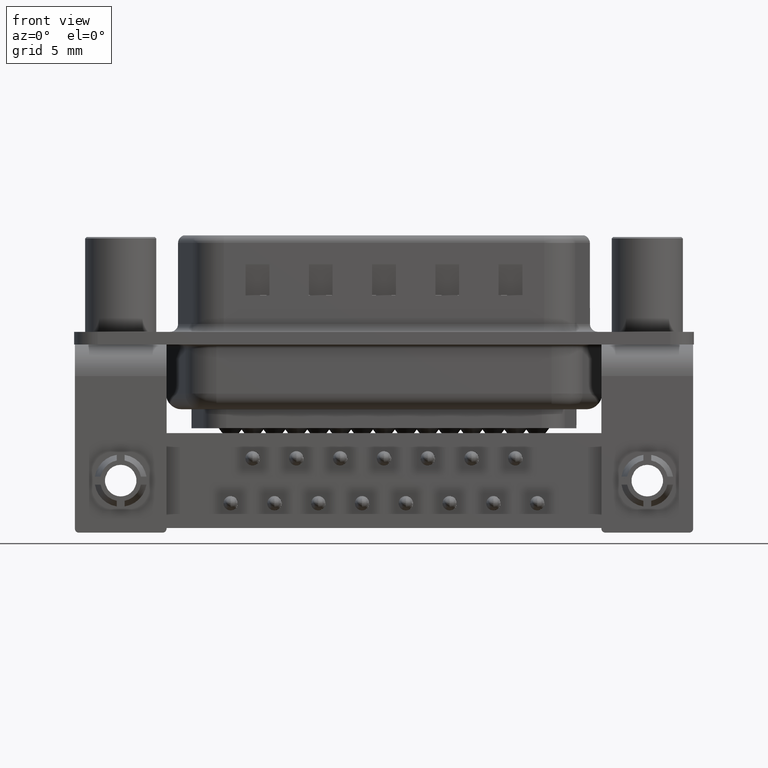
[diagram: clean part render]
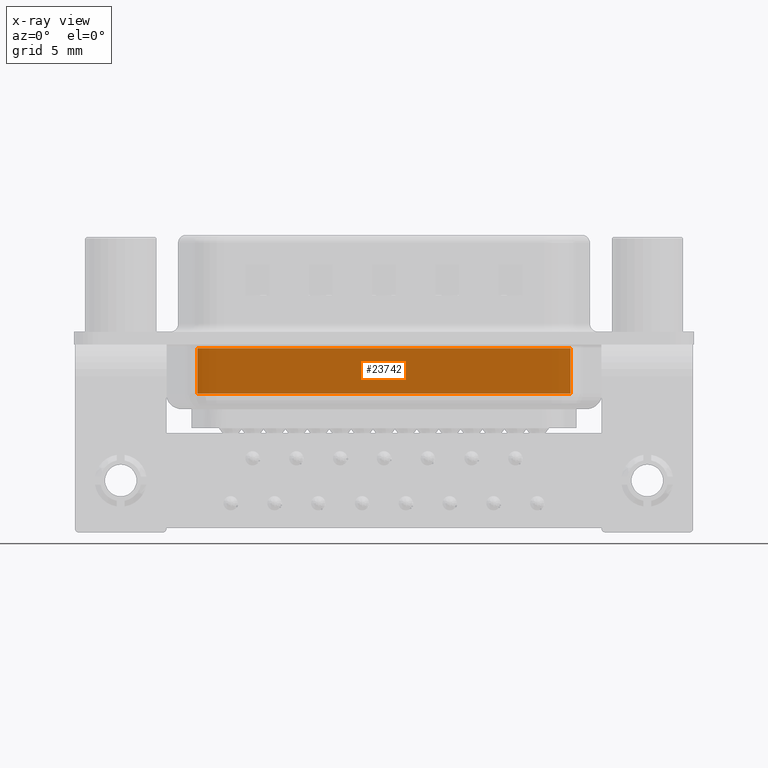
[diagram: x-ray — body ghosted, one internal face saturated and labeled with its STEP entity id]
A machine part, front view, then the same camera in x-ray: the body is ghosted and one INTERNAL B-rep face — a face not visible from any outside direction — is saturated and labeled: STEP entity #23742.
In plain terms, the highlighted planar face has unit normal (-0, -1, 0).
Its self-contained STEP definition (entity closure, byte-faithful):
#1131 = VERTEX_POINT ( 'NONE', #25068 ) ;
#1211 = DIRECTION ( 'NONE',  ( -2.205156960987467600E-016, -1.000000000000000000, 0.0000000000000000000 ) ) ;
#2328 = DIRECTION ( 'NONE',  ( -0.0000000000000000000, 0.0000000000000000000, 1.000000000000000000 ) ) ;
#2788 = EDGE_CURVE ( 'NONE', #12689, #6622, #10529, .T. ) ;
#3305 = LINE ( 'NONE', #26402, #24828 ) ;
#3990 = EDGE_CURVE ( 'NONE', #1131, #11042, #10732, .T. ) ;
#4621 = CARTESIAN_POINT ( 'NONE',  ( 4.850000000000000500, 5.000000000000004400, -4.500000000000000000 ) ) ;
#5007 = EDGE_CURVE ( 'NONE', #6622, #11042, #22932, .T. ) ;
#5011 = ORIENTED_EDGE ( 'NONE', *, *, #3990, .T. ) ;
#5304 = FACE_OUTER_BOUND ( 'NONE', #21317, .T. ) ;
#6622 = VERTEX_POINT ( 'NONE', #15876 ) ;
#7530 = PLANE ( 'NONE',  #17382 ) ;
#10374 = DIRECTION ( 'NONE',  ( -0.0000000000000000000, -0.0000000000000000000, 1.000000000000000000 ) ) ;
#10529 = LINE ( 'NONE', #4621, #20789 ) ;
#10732 = LINE ( 'NONE', #11559, #26694 ) ;
#11042 = VERTEX_POINT ( 'NONE', #19490 ) ;
#11559 = CARTESIAN_POINT ( 'NONE',  ( 28.44999999999998500, 5.000000000000000900, -4.500000000000000000 ) ) ;
#12618 = VECTOR ( 'NONE', #16045, 1000.000000000000000 ) ;
#12689 = VERTEX_POINT ( 'NONE', #27042 ) ;
#15566 = CARTESIAN_POINT ( 'NONE',  ( 28.44999999999998500, 4.999999999999999100, -0.6500000000000000200 ) ) ;
#15799 = DIRECTION ( 'NONE',  ( 1.000000000000000000, -2.205156960987467600E-016, 0.0000000000000000000 ) ) ;
#15876 = CARTESIAN_POINT ( 'NONE',  ( 4.850000000000000500, 5.000000000000004400, -0.6500000000000000200 ) ) ;
#16045 = DIRECTION ( 'NONE',  ( 1.000000000000000000, -2.205156960987467600E-016, 0.0000000000000000000 ) ) ;
#17306 = EDGE_CURVE ( 'NONE', #1131, #12689, #3305, .T. ) ;
#17382 = AXIS2_PLACEMENT_3D ( 'NONE', #17768, #1211, #15799 ) ;
#17768 = CARTESIAN_POINT ( 'NONE',  ( 28.44999999999998500, 4.999999999999999100, -4.500000000000000000 ) ) ;
#17915 = ORIENTED_EDGE ( 'NONE', *, *, #2788, .F. ) ;
#19490 = CARTESIAN_POINT ( 'NONE',  ( 28.44999999999998500, 5.000000000000000900, -0.6500000000000000200 ) ) ;
#20064 = DIRECTION ( 'NONE',  ( -1.000000000000000000, 2.205156960987467600E-016, -0.0000000000000000000 ) ) ;
#20789 = VECTOR ( 'NONE', #2328, 1000.000000000000000 ) ;
#21317 = EDGE_LOOP ( 'NONE', ( #5011, #25124, #17915, #24917 ) ) ;
#22932 = LINE ( 'NONE', #15566, #12618 ) ;
#23742 = ADVANCED_FACE ( 'NONE', ( #5304 ), #7530, .T. ) ;
#24828 = VECTOR ( 'NONE', #20064, 1000.000000000000000 ) ;
#24917 = ORIENTED_EDGE ( 'NONE', *, *, #17306, .F. ) ;
#25068 = CARTESIAN_POINT ( 'NONE',  ( 28.44999999999998500, 5.000000000000000900, -3.499999999999999600 ) ) ;
#25124 = ORIENTED_EDGE ( 'NONE', *, *, #5007, .F. ) ;
#26402 = CARTESIAN_POINT ( 'NONE',  ( 28.44999999999998500, 4.999999999999999100, -3.499999999999999600 ) ) ;
#26694 = VECTOR ( 'NONE', #10374, 1000.000000000000000 ) ;
#27042 = CARTESIAN_POINT ( 'NONE',  ( 4.850000000000000500, 5.000000000000004400, -3.499999999999999600 ) ) ;